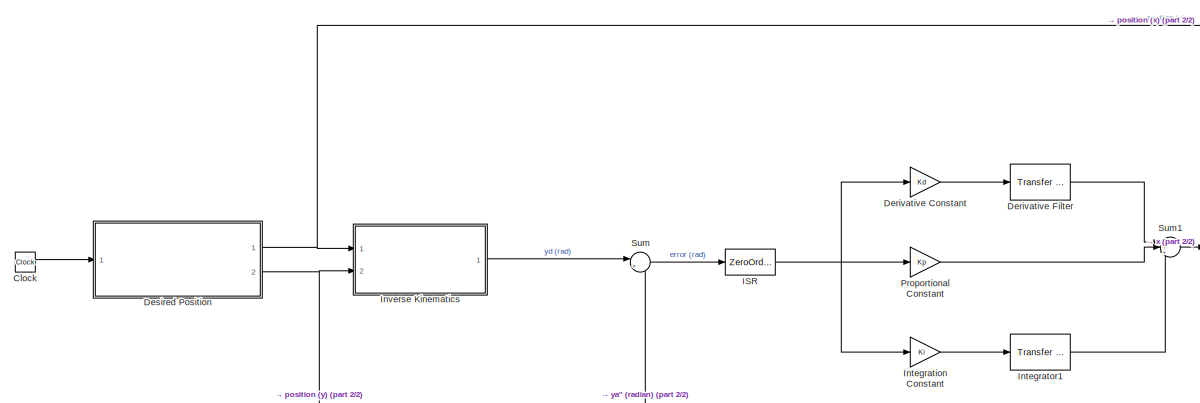
[diagram: root canvas - part 1/2, top left region]
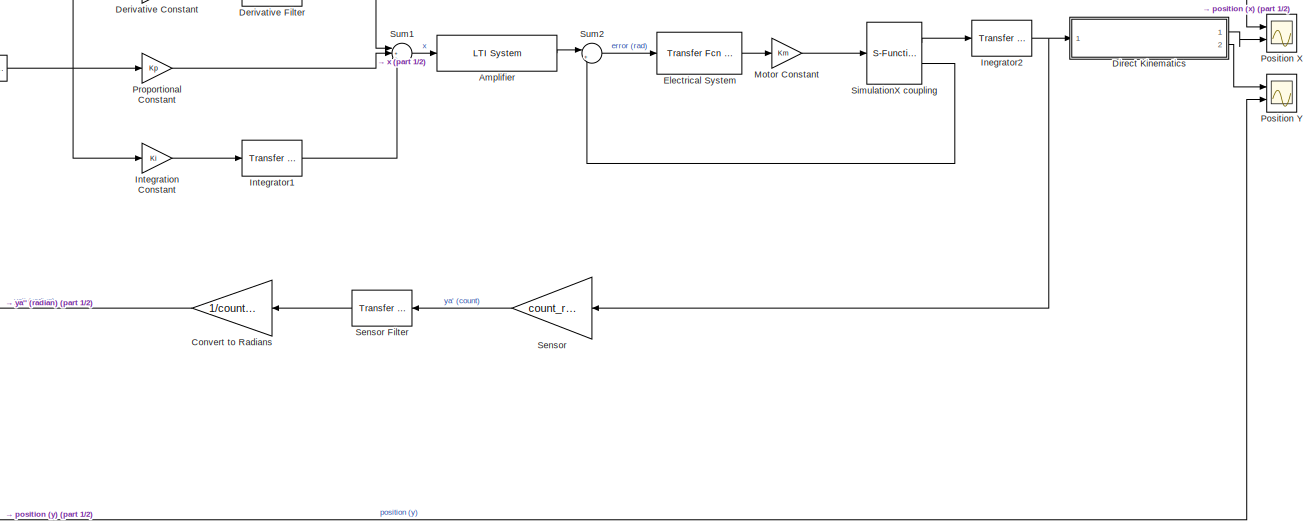
[diagram: root canvas - part 2/2, middle right region]
MODEL slx_df9974082c07
KIND model
CONFIG AbsTol = auto
CONFIG EnableMultiTasking = off
CONFIG FixedStep = auto
CONFIG MaxStep = auto
CONFIG MinStep = auto
CONFIG RelTol = 1e-3
CONFIG SampleTimeConstraint = Unconstrained
CONFIG SolverName = VariableStepAuto
CONFIG StartTime = 0.0
CONFIG StopTime = 5
BLOCK [Reference] Amplifier  REF=cstblocks/LTI System
  Ports = [1, 1]
  SourceBlock = cstblocks/LTI System
  SourceProductBaseCode = CT
  SourceType = LTI Block
BLOCK [Clock] Clock
BLOCK [Gain] Convert to Radians
  Gain = 1/count_rate
BLOCK [Gain] Derivative Constant
  Gain = Kd
BLOCK [Reference] Derivative Filter   REF=simulink_extras/Additional
Linear/Transfer Fcn
(with initial states)
  Ports = [1, 1]
  SourceBlock = simulink_extras/Additional\nLinear/Transfer Fcn\n(with initial states)
  SourceProductBaseCode = SL
  SourceType = Transfer Function with Initial States
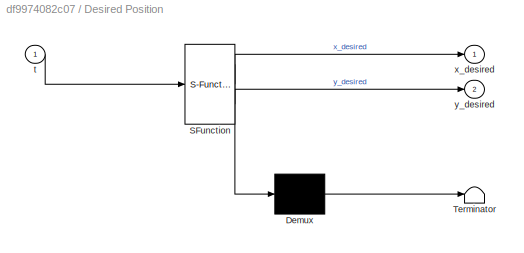
BLOCK [SubSystem] Desired Position
  ErrorFcn = Stateflow.Translate.translate
  PermitHierarchicalResolution = ExplicitOnly
  Ports = [1, 2]
  RequestExecContextInheritance = off
  SFBlockType = MATLAB Function
  TreatAsAtomicUnit = on
BLOCK [Demux] Desired Position/ Demux 
  Outputs = 1
  Ports = [1, 1]
BLOCK [S-Function] Desired Position/ SFunction 
  EnableBusSupport = on
  FunctionName = sf_sfun
  PortCounts = [1 3]
  Ports = [1, 3]
  SFcnIsStateOwnerBlock = off
  SFunctionDeploymentMode = off
  Tag = Stateflow S-Function 2
BLOCK [Terminator] Desired Position/ Terminator 
BLOCK [Inport] Desired Position/t
BLOCK [Outport] Desired Position/x_desired
BLOCK [Outport] Desired Position/y_desired
  Port = 2
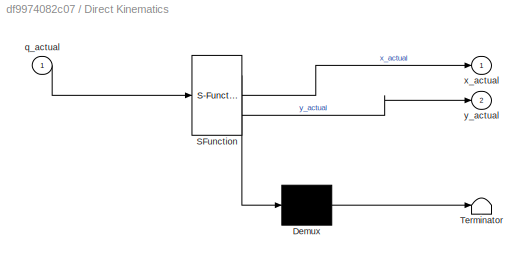
BLOCK [SubSystem] Direct Kinematics
  ErrorFcn = Stateflow.Translate.translate
  PermitHierarchicalResolution = ExplicitOnly
  Ports = [1, 2]
  RequestExecContextInheritance = off
  SFBlockType = MATLAB Function
  TreatAsAtomicUnit = on
BLOCK [Demux] Direct Kinematics/ Demux 
  Outputs = 1
  Ports = [1, 1]
BLOCK [S-Function] Direct Kinematics/ SFunction 
  EnableBusSupport = on
  FunctionName = sf_sfun
  PortCounts = [1 3]
  Ports = [1, 3]
  SFcnIsStateOwnerBlock = off
  SFunctionDeploymentMode = off
  Tag = Stateflow S-Function 3
BLOCK [Terminator] Direct Kinematics/ Terminator 
BLOCK [Inport] Direct Kinematics/q_actual
BLOCK [Outport] Direct Kinematics/x_actual
BLOCK [Outport] Direct Kinematics/y_actual
  Port = 2
BLOCK [Reference] Electrical System  REF=simulink_extras/Additional
Linear/Transfer Fcn
(with initial states)
  Ports = [1, 1]
  SourceBlock = simulink_extras/Additional\nLinear/Transfer Fcn\n(with initial states)
  SourceProductBaseCode = SL
  SourceType = Transfer Function with Initial States
BLOCK [ZeroOrderHold] ISR
  SampleTime = 1/f
BLOCK [Reference] Inegrator2  REF=simulink_extras/Additional
Linear/Transfer Fcn
(with initial states)
  Ports = [1, 1]
  SourceBlock = simulink_extras/Additional\nLinear/Transfer Fcn\n(with initial states)
  SourceProductBaseCode = SL
  SourceType = Transfer Function with Initial States
BLOCK [Gain] Integration Constant
  Gain = Ki
BLOCK [Reference] Integrator1  REF=simulink_extras/Additional
Linear/Transfer Fcn
(with initial states)
  Ports = [1, 1]
  SourceBlock = simulink_extras/Additional\nLinear/Transfer Fcn\n(with initial states)
  SourceProductBaseCode = SL
  SourceType = Transfer Function with Initial States
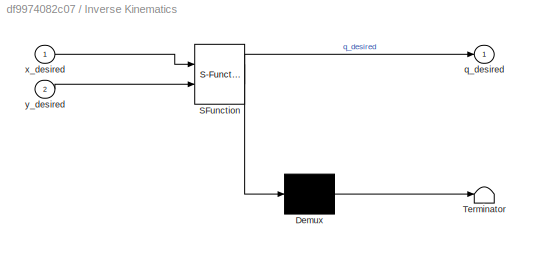
BLOCK [SubSystem] Inverse Kinematics
  ErrorFcn = Stateflow.Translate.translate
  PermitHierarchicalResolution = ExplicitOnly
  Ports = [2, 1]
  RequestExecContextInheritance = off
  SFBlockType = MATLAB Function
  TreatAsAtomicUnit = on
BLOCK [Demux] Inverse Kinematics/ Demux 
  Outputs = 1
  Ports = [1, 1]
BLOCK [S-Function] Inverse Kinematics/ SFunction 
  EnableBusSupport = on
  FunctionName = sf_sfun
  PortCounts = [2 2]
  Ports = [2, 2]
  SFcnIsStateOwnerBlock = off
  SFunctionDeploymentMode = off
  Tag = Stateflow S-Function 1
BLOCK [Terminator] Inverse Kinematics/ Terminator 
BLOCK [Outport] Inverse Kinematics/q_desired
BLOCK [Inport] Inverse Kinematics/x_desired
BLOCK [Inport] Inverse Kinematics/y_desired
  Port = 2
BLOCK [Gain] Motor Constant
  Gain = Km
BLOCK [Scope] Position X
  Floating = off
  NumInputPorts = 2
  Ports = [2]
  ScopeSpecificationString = Simulink.scopes.TimeScopeBlockCfg('CurrentConfiguration', extmgr.ConfigurationSet(extmgr.Configuration('Core','General UI',true),extmgr.Configuration('Core','Source UI',true),extmgr.Configuration('Sources','WiredSimulink',true),extmgr.Configuration('Visuals','Time Domain',true,'SerializedDisplays',{struct('MinYLimReal','-1.25','MaxYLimReal','1.25','YLabelReal','','MinYLimMag','0.00000','MaxYLimMag...<+1377ch>
BLOCK [Scope] Position Y
  Floating = off
  NumInputPorts = 2
  Ports = [2]
  ScopeSpecificationString = Simulink.scopes.TimeScopeBlockCfg('CurrentConfiguration', extmgr.ConfigurationSet(extmgr.Configuration('Core','General UI',true),extmgr.Configuration('Core','Source UI',true),extmgr.Configuration('Sources','WiredSimulink',true,'DataLoggingVariableName','ScopeData1'),extmgr.Configuration('Visuals','Time Domain',true,'SerializedDisplays',{struct('MinYLimReal','-1.25','MaxYLimReal','1.25','YLabelReal...<+1409ch>
BLOCK [Gain] Proportional Constant
  Gain = Kp
BLOCK [Gain] Sensor
  Gain = count_rate
BLOCK [Reference] Sensor Filter  REF=simulink_extras/Additional
Linear/Transfer Fcn
(with initial states)
  Ports = [1, 1]
  SourceBlock = simulink_extras/Additional\nLinear/Transfer Fcn\n(with initial states)
  SourceProductBaseCode = SL
  SourceType = Transfer Function with Initial States
BLOCK [S-Function] SimulationX coupling
  EnableBusSupport = off
  FunctionName = ITIFct2
  Parameters = ip, port, ts, nIn, nOut
  Ports = [1, 2]
  SFcnIsStateOwnerBlock = off
  SFunctionDeploymentMode = off
BLOCK [Sum] Sum
  Inputs = |+-
  Ports = [2, 1]
BLOCK [Sum] Sum1
  Inputs = |+++
  Ports = [3, 1]
BLOCK [Sum] Sum2
  Inputs = |+-
  Ports = [2, 1]
LINE Amplifier:1 -> Sum2:1
LINE Clock:1 -> Desired Position:1
LINE Convert to Radians:1 -> Sum:2
LINE Derivative Constant:1 -> Derivative Filter :1
LINE Derivative Filter :1 -> Sum1:1
NET Desired Position:1 -> Inverse Kinematics:1, Position X:1
NET Desired Position:2 -> Inverse Kinematics:2, Position Y:2
LINE Direct Kinematics:1 -> Position X:2
LINE Direct Kinematics:2 -> Position Y:1
LINE Electrical System:1 -> Motor Constant:1
NET ISR:1 -> Derivative Constant:1, Integration Constant:1, Proportional Constant:1
NET Inegrator2:1 -> Direct Kinematics:1, Sensor:1
LINE Integration Constant:1 -> Integrator1:1
LINE Integrator1:1 -> Sum1:3
LINE Inverse Kinematics:1 -> Sum:1
LINE Motor Constant:1 -> SimulationX coupling:1
LINE Proportional Constant:1 -> Sum1:2
LINE Sensor Filter:1 -> Convert to Radians:1
LINE Sensor:1 -> Sensor Filter:1
LINE SimulationX coupling:1 -> Inegrator2:1
LINE SimulationX coupling:2 -> Sum2:2
LINE Sum1:1 -> Amplifier:1
LINE Sum2:1 -> Electrical System:1
LINE Sum:1 -> ISR:1
note: NET lines group one-source signal fan-out (src -> all destinations, sorted); 1:1 wires keep LINE
CHART Desired Position states=1 transitions=1
  STATE_LABEL 'eML_blk_kernel()'
  STATE_LABEL 'SCRIPT:\nfunction [x_desired,y_desired] = fcn(t) %This function is used to determine the path of the arm //ba\n\ny_desired =(98.88*10^-3)*sin(t);\nx_desired=(98.88*10^-3)*cos(t);\n'
CHART Direct Kinematics states=1 transitions=1
  STATE_LABEL 'eML_blk_kernel()'
  STATE_LABEL 'SCRIPT:\nfunction [x_actual, y_actual]  = fcn(q_actual)\n\ny_actual = (98.88*10^-3)*sin(q_actual); %multiply by the distance from joint1 to joint 2\nx_actual=(98.88*10^-3)*cos(q_actual); %multiply by the distance from joint1 to joint2\n\n'
CHART Inverse Kinematics states=1 transitions=1
  STATE_LABEL 'eML_blk_kernel()'
  STATE_LABEL 'SCRIPT:\nfunction q_desired = fcn(x_desired,y_desired) %Inverse Kinematics\nq_desired = atan(y_desired/x_desired);\n'
CHART  states=0 transitions=0
CHART  states=0 transitions=0
CHART  states=0 transitions=0
